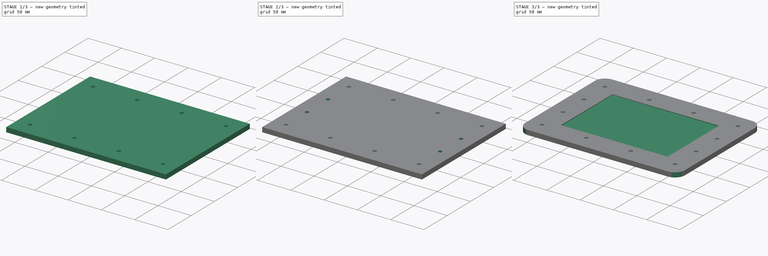
[diagram: build sequence overview — one tinted view per stage of 3, left to right]
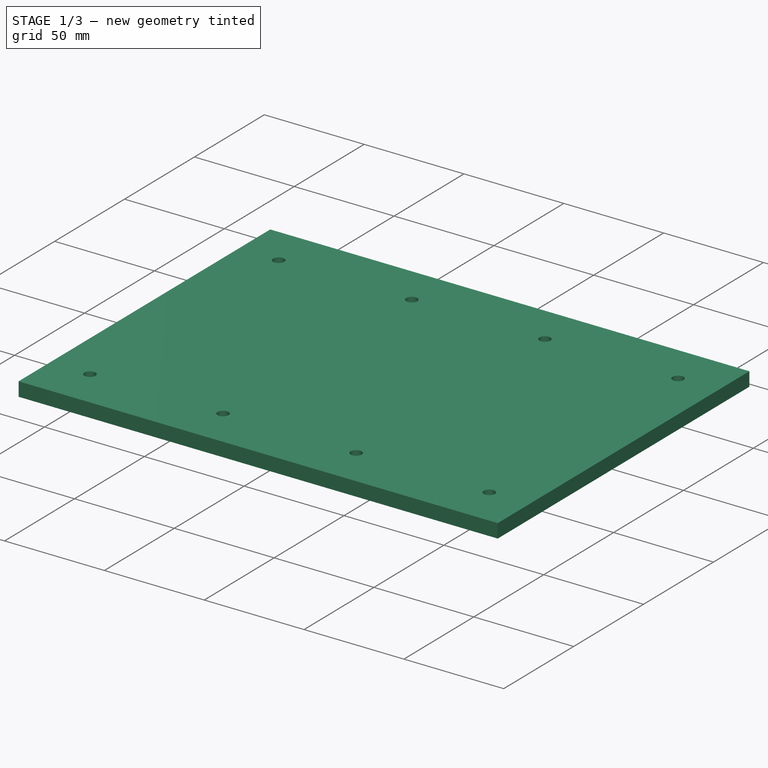
[diagram: stage 1 of 3 — iso view after this stage's code; geometry added in this stage tinted green]
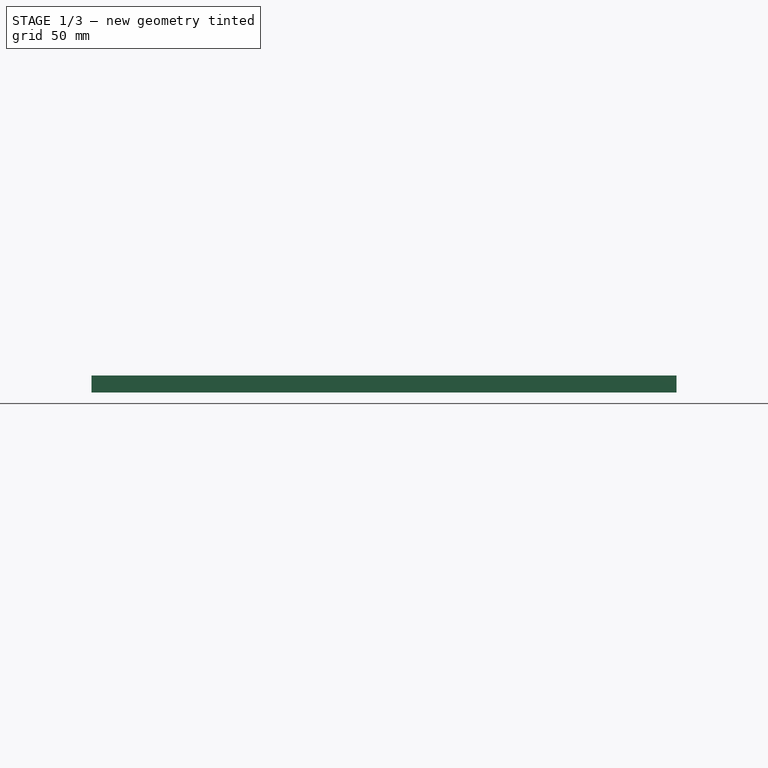
[diagram: stage 1 of 3 — front view after this stage's code; geometry added in this stage tinted green]
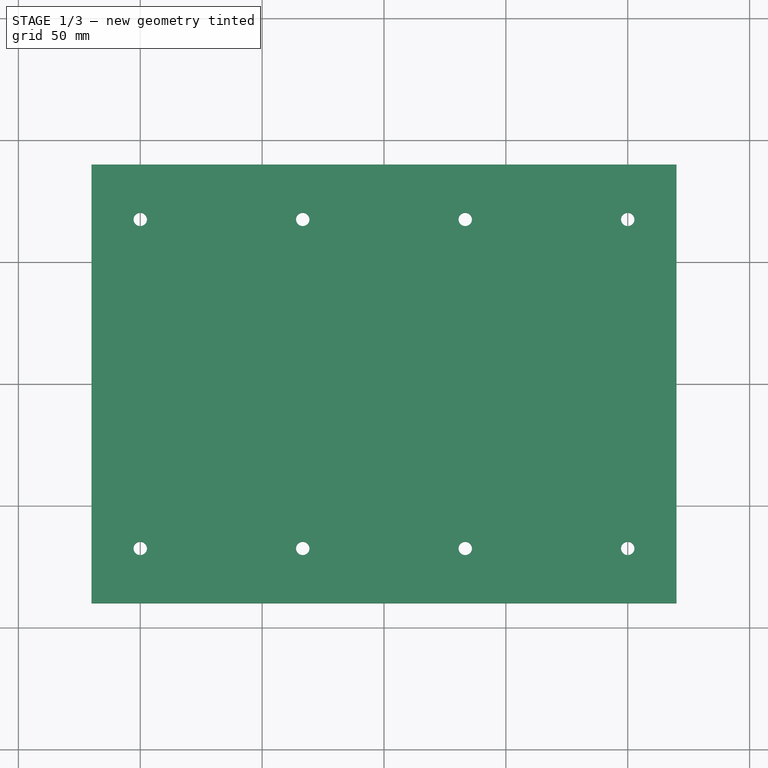
[diagram: stage 1 of 3 — top view after this stage's code; geometry added in this stage tinted green]
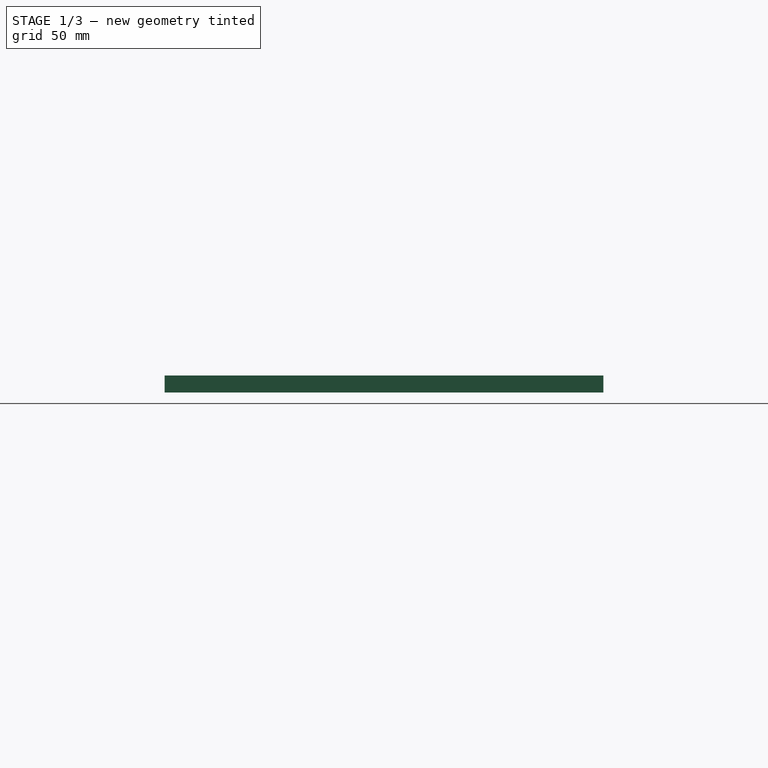
[diagram: stage 1 of 3 — right view after this stage's code; geometry added in this stage tinted green]
FCSTD DOCUMENT  (FreeCAD 0.18R16110 (Git))
Label: pcbbed
License: CreativeCommons Attribution-ShareAlike
LicenseURL: http://creativecommons.org/licenses/by-sa/4.0/
objects: Sketcher::SketchObject×6, PartDesign::Pocket×3, PartDesign::Pad×2, PartDesign::Body×2, App::Part×2, Part::Feature×2, PartDesign::LinearPattern×1, PartDesign::Mirrored×1, PartDesign::Fillet×1
note: 23 computed .brp shape members not serialized (recipe doc carries the construction recipe); baked Part::Feature solids carry a one-line shape summary decoded from their .brp

FEATURE [Sketcher::SketchObject] Sketch003  label="sacrificial-outer"
  MapMode = 5
  Support = -> [XY_Plane004]
  sketch-geometry (4):
    g0: LineSegment StartX=-120 StartY=90 StartZ=0 EndX=120 EndY=90 EndZ=0
    g1: LineSegment StartX=120 StartY=90 StartZ=0 EndX=120 EndY=-90 EndZ=0
    g2: LineSegment StartX=120 StartY=-90 StartZ=0 EndX=-120 EndY=-90 EndZ=0
    g3: LineSegment StartX=-120 StartY=-90 StartZ=0 EndX=-120 EndY=90 EndZ=0
  constraints (10):
    c: Coincident(g0,g1)
    c: Coincident(g1,g2)
    c: Coincident(g2,g3)
    c: Coincident(g3,g0)
    c: Horizontal(g0)
    c: Vertical(g3)
    c: Symmetric(g2,g1,g-2)
    c: Symmetric(g1,g0,g-1)
    c: DistanceX(g0,g0) = 240
    c: DistanceY(g1,g1) = 180
FEATURE [PartDesign::Pad] Pad002
  Length = 7
  Length2 = 100
  Profile = -> Sketch003
  Type = 0
FEATURE [Sketcher::SketchObject] Sketch004  label="sacrificial-holes-long"
  MapMode = 5
  Placement = pos=(0,0,7) rot=(0,0,1;0rad)
  Support = -> [Pad002]
  sketch-geometry (3):
    g0: LineSegment [constr] StartX=-100 StartY=-67.5 StartZ=0 EndX=-100 EndY=67.5 EndZ=0
    g1: Circle CenterX=-100 CenterY=67.5 CenterZ=0 NormalX=0 NormalY=0 NormalZ=1 AngleXU=0 Radius=2.75
    g2: Circle CenterX=-100 CenterY=-67.5 CenterZ=0 NormalX=0 NormalY=0 NormalZ=1 AngleXU=0 Radius=2.75
  constraints (7):
    c: Symmetric(g0,g0,g-1)
    c: Equal(g2,g1)
    c: DistanceY(g0,g0) = 135
    c: Radius(g2) = 2.75
    c: Coincident(g0,g1)
    c: Coincident(g2,g0)
    c: DistanceX(g2) = -100
FEATURE [PartDesign::Pocket] Pocket
  BaseFeature = -> Pad002
  Length = 7
  Length2 = 100
  Profile = -> Sketch004
  Type = 1
FEATURE [Sketcher::SketchObject] Sketch039  label="pcb-outer"
  MapMode = 5
  Support = -> [XY_Plane035]
  sketch-geometry (4):
    g0: LineSegment StartX=75 StartY=50 StartZ=0 EndX=-75 EndY=50 EndZ=0
    g1: LineSegment StartX=-75 StartY=50 StartZ=0 EndX=-75 EndY=-50 EndZ=0
    g2: LineSegment StartX=-75 StartY=-50 StartZ=0 EndX=75 EndY=-50 EndZ=0
    g3: LineSegment StartX=75 StartY=-50 StartZ=0 EndX=75 EndY=50 EndZ=0
  constraints (10):
    c: Coincident(g0,g1)
    c: Coincident(g1,g2)
    c: Coincident(g2,g3)
    c: Coincident(g3,g0)
    c: Horizontal(g0)
    c: Vertical(g3)
    c: DistanceX(g2,g2) = 150
    c: DistanceY(g3,g3) = 100
    c: Symmetric(g0,g1,g-1)
    c: Symmetric(g1,g2,g-2)
FEATURE [Sketcher::SketchObject] Sketch040  label="pcb-outer001"
  MapMode = 5
  Support = -> [XY_Plane035]
  sketch-geometry (4):
    g0: LineSegment StartX=75 StartY=50 StartZ=0 EndX=-75 EndY=50 EndZ=0
    g1: LineSegment StartX=-75 StartY=50 StartZ=0 EndX=-75 EndY=-50 EndZ=0
    g2: LineSegment StartX=-75 StartY=-50 StartZ=0 EndX=75 EndY=-50 EndZ=0
    g3: LineSegment StartX=75 StartY=-50 StartZ=0 EndX=75 EndY=50 EndZ=0
  constraints (10):
    c: Coincident(g0,g1)
    c: Coincident(g1,g2)
    c: Coincident(g2,g3)
    c: Coincident(g3,g0)
    c: Horizontal(g0)
    c: Vertical(g3)
    c: DistanceX(g2,g2) = 150
    c: DistanceY(g3,g3) = 100
    c: Symmetric(g0,g1,g-1)
    c: Symmetric(g1,g2,g-2)
FEATURE [PartDesign::LinearPattern] LinearPattern
  BaseFeature = -> Pocket
  Direction = -> Sketch004 [H_Axis]
  Length = 200
  Occurrences = 4
  Originals = -> [Pocket]
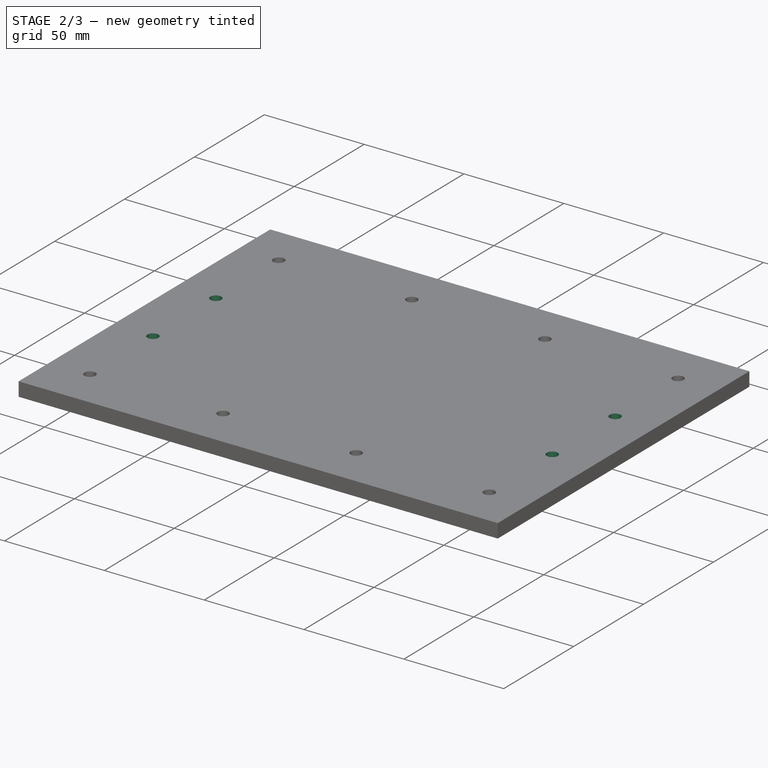
[diagram: stage 2 of 3 — iso view after this stage's code; geometry added in this stage tinted green]
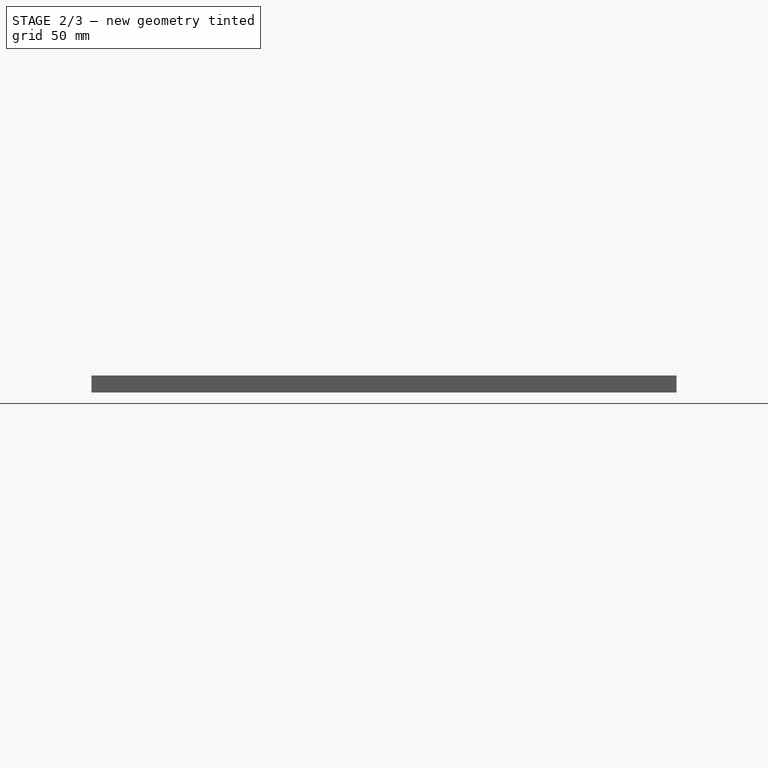
[diagram: stage 2 of 3 — front view after this stage's code; geometry added in this stage tinted green]
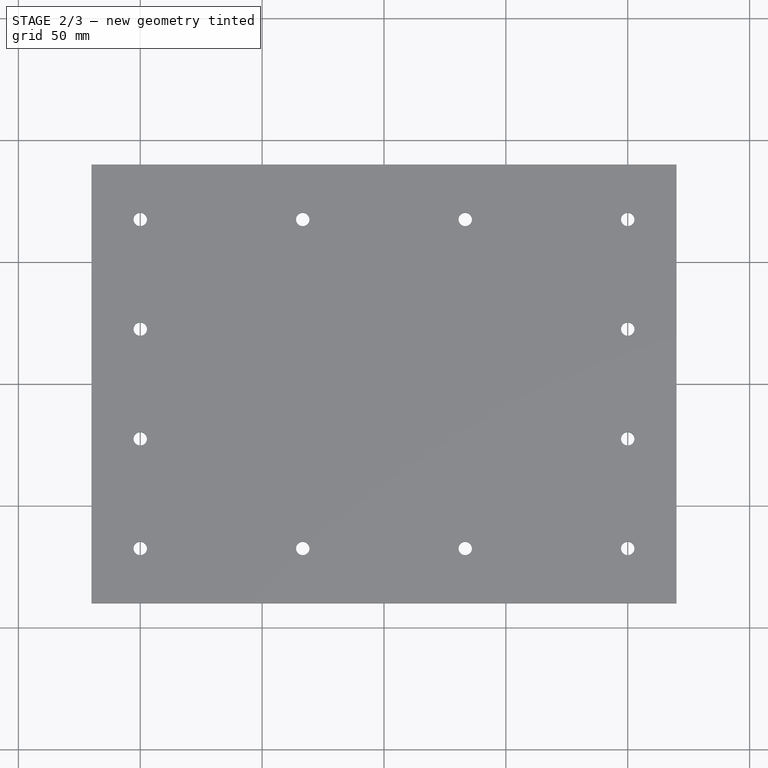
[diagram: stage 2 of 3 — top view after this stage's code; geometry added in this stage tinted green]
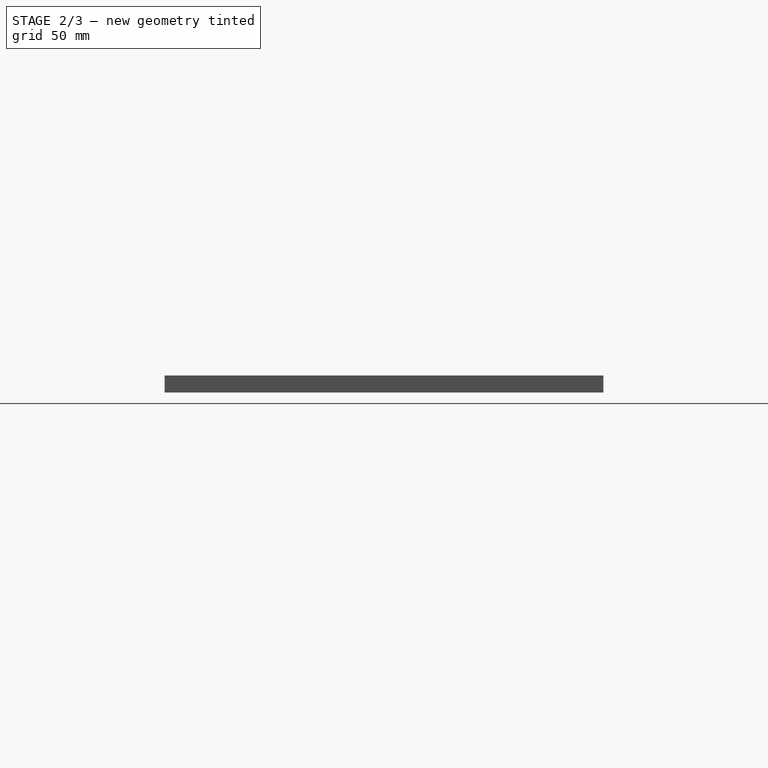
[diagram: stage 2 of 3 — right view after this stage's code; geometry added in this stage tinted green]
FEATURE [Sketcher::SketchObject] Sketch041  label="sacrificial-holes-short"
  MapMode = 5
  Placement = pos=(0,0,7) rot=(0,0,1;0rad)
  Support = -> [LinearPattern]
  sketch-geometry (3):
    g0: LineSegment [constr] StartX=-100 StartY=-22.5 StartZ=0 EndX=-100 EndY=22.5 EndZ=0
    g1: Circle CenterX=-100 CenterY=22.5 CenterZ=0 NormalX=0 NormalY=0 NormalZ=1 AngleXU=0 Radius=2.75
    g2: Circle CenterX=-100 CenterY=-22.5 CenterZ=0 NormalX=0 NormalY=0 NormalZ=1 AngleXU=0 Radius=2.75
  constraints (7):
    c: Symmetric(g0,g0,g-1)
    c: Equal(g2,g1)
    c: DistanceY(g0,g0) = 45
    c: Radius(g2) = 2.75
    c: Coincident(g0,g1)
    c: Coincident(g2,g0)
    c: DistanceX(g2) = -100
FEATURE [PartDesign::Pocket] Pocket001
  BaseFeature = -> LinearPattern
  Length = 5
  Length2 = 100
  Profile = -> Sketch041
  Type = 1
FEATURE [PartDesign::Mirrored] Mirrored
  BaseFeature = -> Pocket001
  MirrorPlane = -> YZ_Plane004
  Originals = -> [Pocket001]
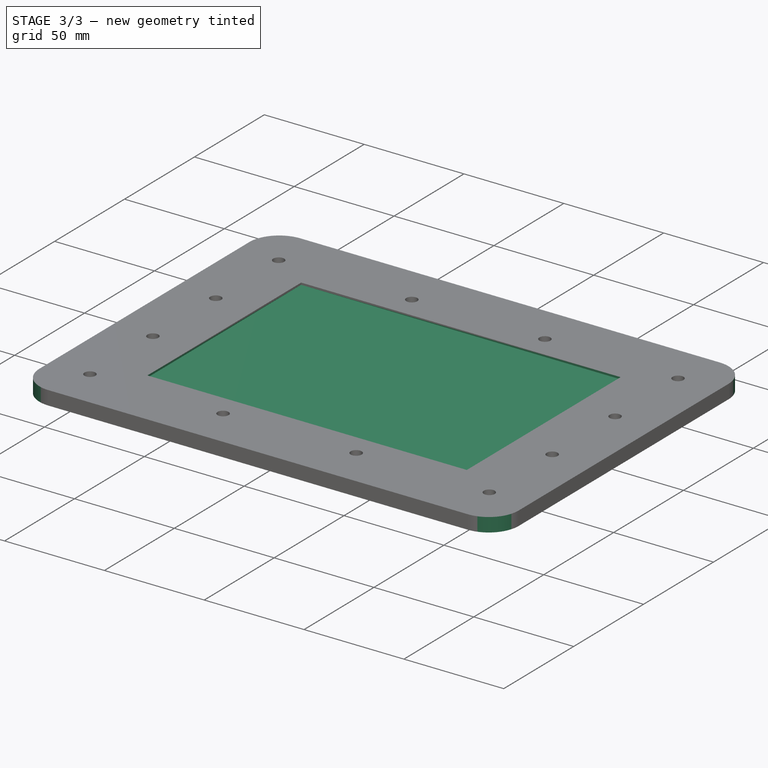
[diagram: stage 3 of 3 — iso view after this stage's code; geometry added in this stage tinted green]
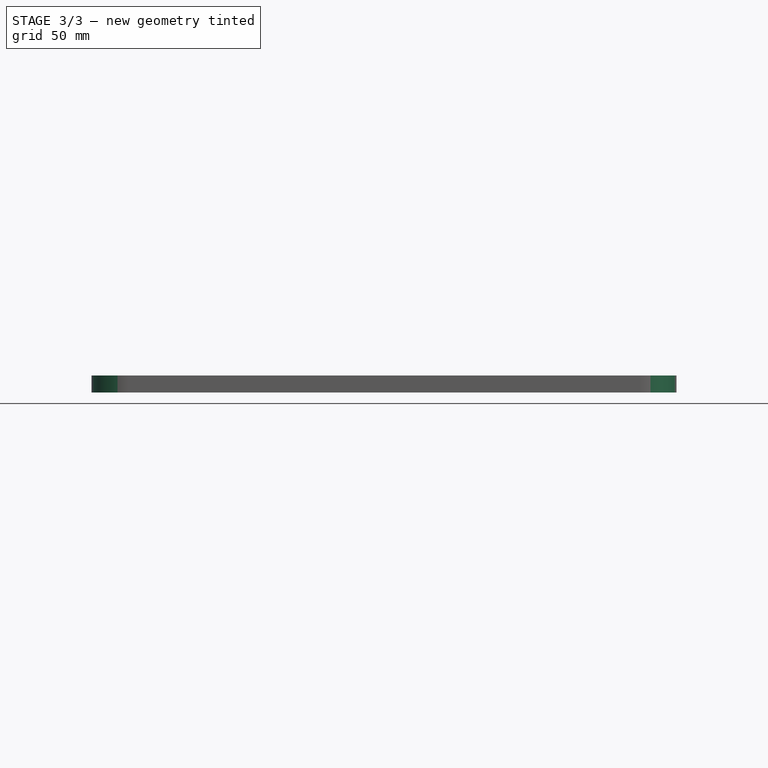
[diagram: stage 3 of 3 — front view after this stage's code; geometry added in this stage tinted green]
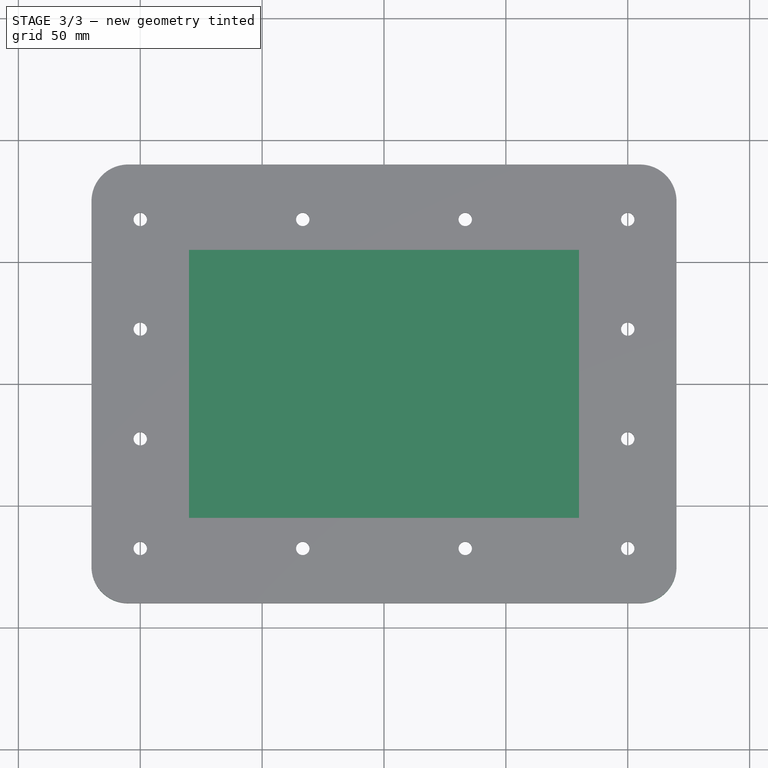
[diagram: stage 3 of 3 — top view after this stage's code; geometry added in this stage tinted green]
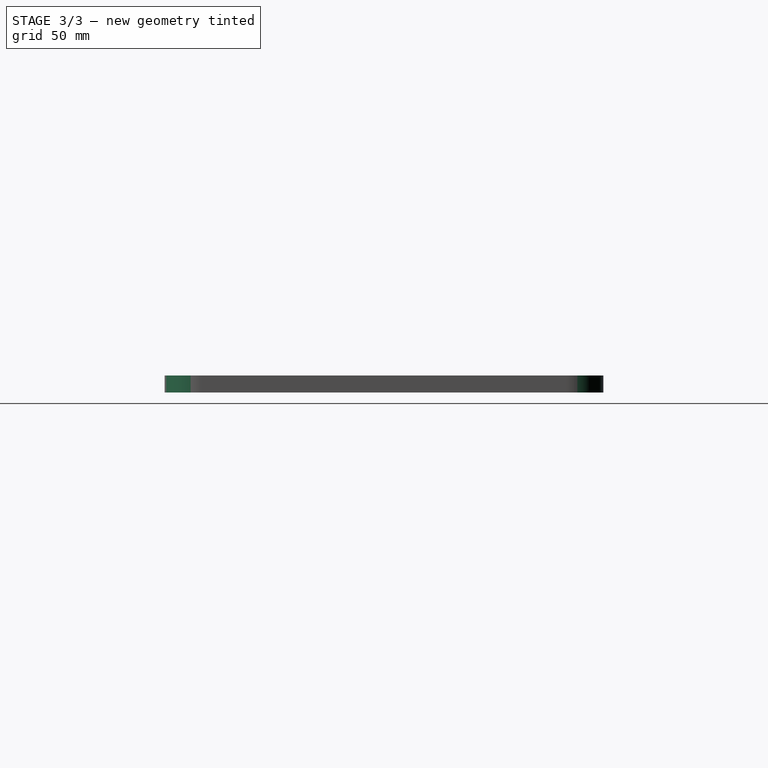
[diagram: stage 3 of 3 — right view after this stage's code; geometry added in this stage tinted green]
FEATURE [PartDesign::Pad] Pad
  Length = 1.6
  Length2 = 100
  Profile = -> Sketch039
  Type = 0
FEATURE [PartDesign::Body] Body023
  Group = -> [Sketch039,Pad]
  Origin = -> Origin035
  Tip = -> Pad
FEATURE [App::Part] Part
  Group = -> [Body023]
  Origin = -> Origin
FEATURE [Sketcher::SketchObject] Sketch
  MapMode = 5
  Placement = pos=(0,0,7) rot=(0,0,1;0rad)
  Support = -> [Mirrored]
  sketch-geometry (4):
    g0: LineSegment StartX=-80 StartY=55 StartZ=0 EndX=80 EndY=55 EndZ=0
    g1: LineSegment StartX=80 StartY=55 StartZ=0 EndX=80 EndY=-55 EndZ=0
    g2: LineSegment StartX=80 StartY=-55 StartZ=0 EndX=-80 EndY=-55 EndZ=0
    g3: LineSegment StartX=-80 StartY=-55 StartZ=0 EndX=-80 EndY=55 EndZ=0
  constraints (10):
    c: Coincident(g0,g1)
    c: Coincident(g1,g2)
    c: Coincident(g2,g3)
    c: Coincident(g3,g0)
    c: Horizontal(g0)
    c: Vertical(g1)
    c: Symmetric(g1,g2,g-2)
    c: Symmetric(g2,g0,g-1)
    c: DistanceX(g0,g0) = 160
    c: DistanceY(g3,g3) = 110
FEATURE [PartDesign::Pocket] Pocket002
  BaseFeature = -> Mirrored
  Length = 1
  Length2 = 100
  Profile = -> Sketch
  Type = 0
FEATURE [PartDesign::Fillet] Fillet
  Base = -> Pocket002 [Edge5,Edge1,Edge2,Edge8]
  BaseFeature = -> Pocket002
  Radius = 15
FEATURE [PartDesign::Body] Body002
  Group = -> [Sketch003,Pad002,Sketch004,Pocket,LinearPattern,Sketch041,Pocket001,Mirrored,Sketch,Pocket002,Fillet]
  Origin = -> Origin004
  Tip = -> Fillet
FEATURE [App::Part] Part001
  Group = -> [Body002]
  License = CC BY 3.0
  LicenseURL = http://creativecommons.org/licenses/by/3.0/
  Origin = -> Origin003
  Placement = pos=(0,0,-7) rot=(0,0,1;0rad)
FEATURE [Part::Feature] Fillet_cs
  Placement = pos=(0,200,0) rot=(0,0,1;0rad)
  shape: bbox 240 x 180 x 3e-07 mm, 0 faces, 0 solids (baked)
FEATURE [Part::Feature] Fillet_cs001
  Placement = pos=(0,400,0) rot=(0,0,1;0rad)
  shape: bbox 240 x 180 x 3e-07 mm, 0 faces, 0 solids (baked)
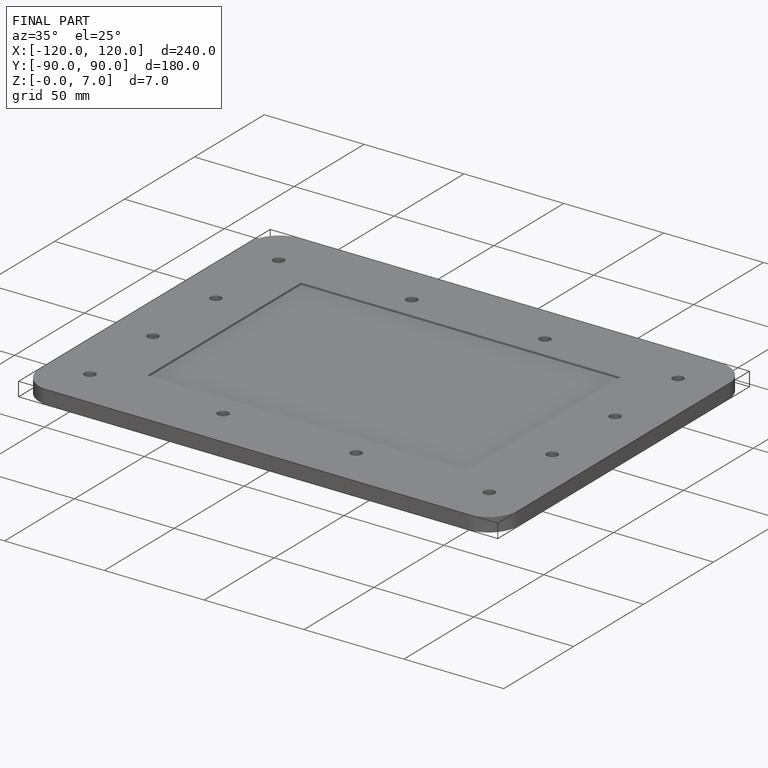
[diagram: finished part — iso view with bounding-box wireframe]
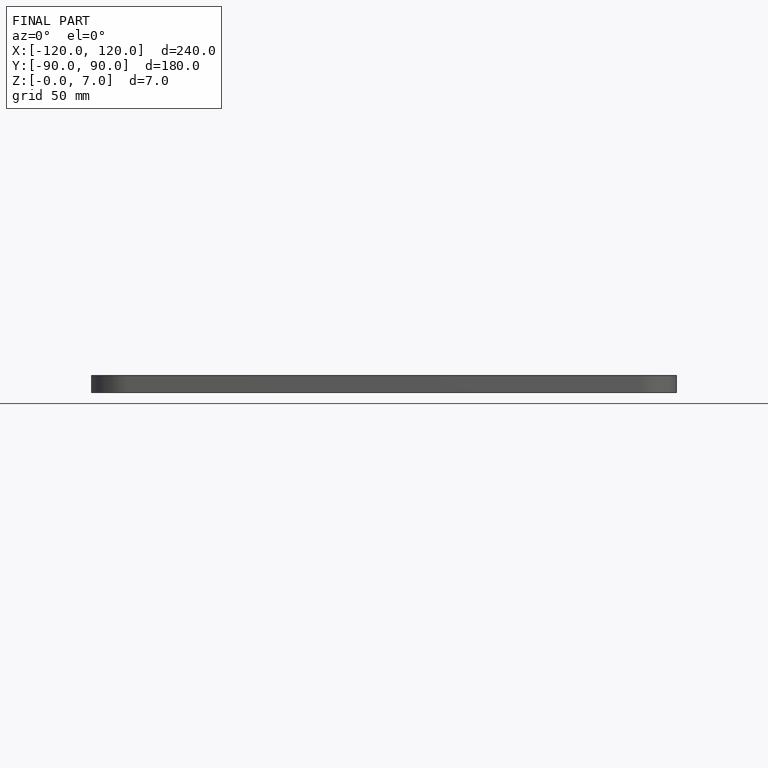
[diagram: finished part — front view with bounding-box wireframe]
